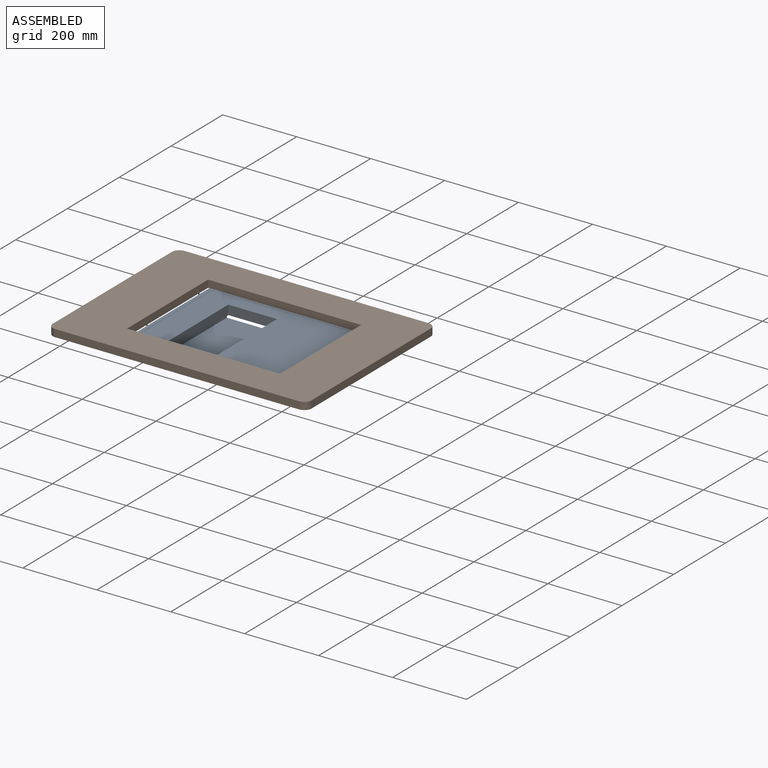
[diagram: assembled view]
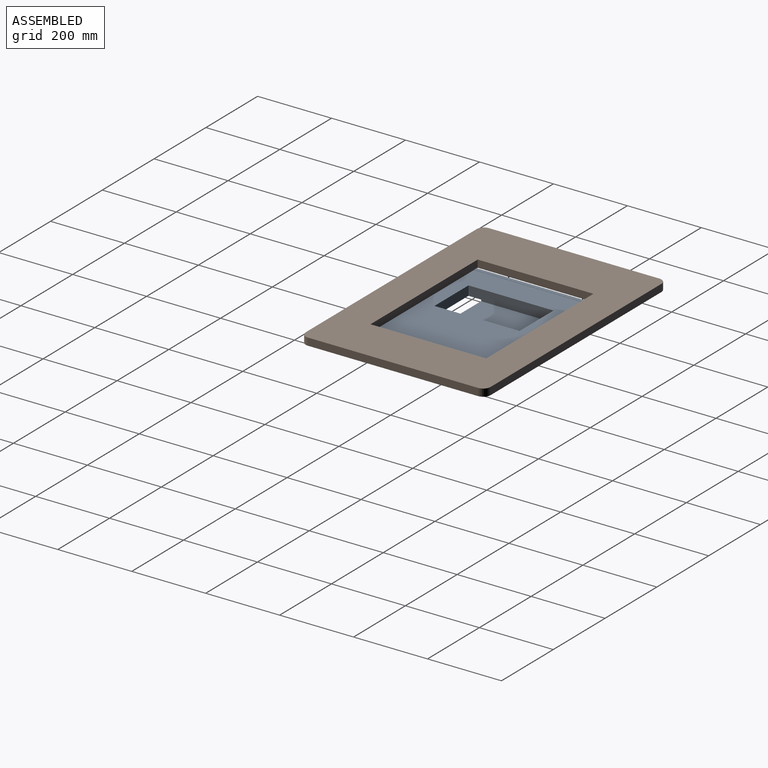
[diagram: assembled view, second angle]
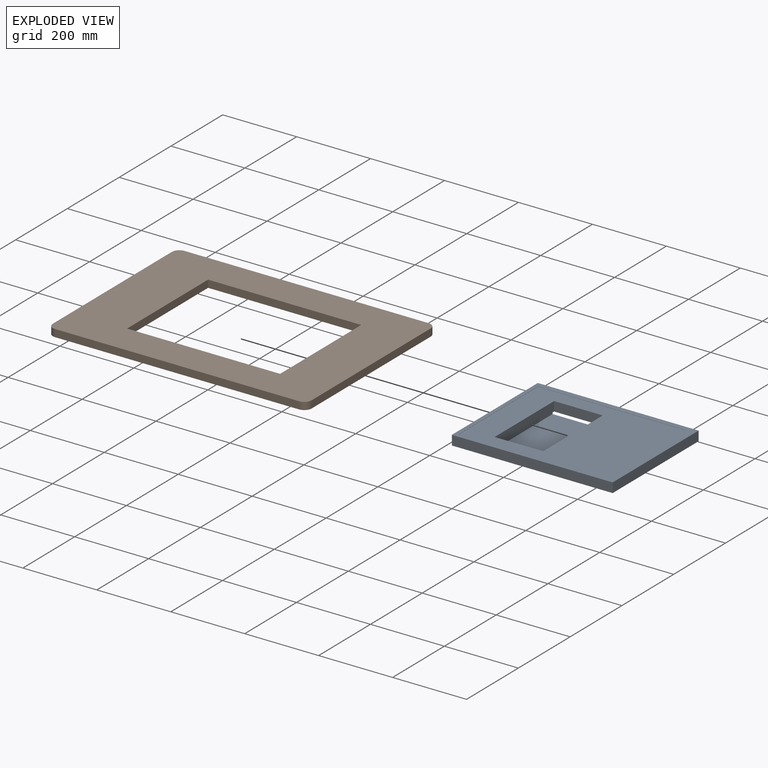
[diagram: exploded view]
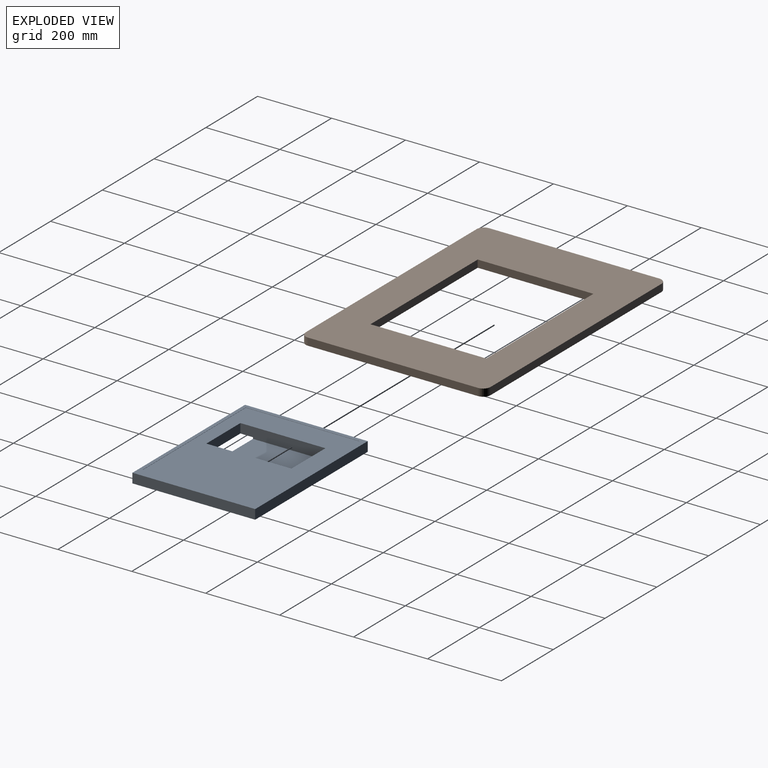
[diagram: exploded view, second angle]
ASSEMBLY  parts=2 mates=3
PART A: 26 faces, bbox 435x332x58 mm
  f0: plane 435x332mm, normal (0,0,-1), area 84052.2mm2, adj f1,f2,f3,f4,f11,f12,f13,f14
  f1: plane 435x26mm, normal (0,1,0), area 11310mm2, adj f0,f2,f4,f5
  f2: plane 332x26mm, normal (-1,0,0), area 8632mm2, adj f0,f1,f3,f5
  f3: plane 435x26mm, normal (0,-1,0), area 11310mm2, adj f0,f2,f4,f5
  f4: plane 332x26mm, normal (1,0,0), area 8632mm2, adj f0,f1,f3,f5
  f5: plane 435x332mm, normal (0,0,1), area 21604.5mm2, adj f1,f2,f3,f4,f6,f7,f8,f9
  f6: plane 307.5x0.5mm, normal (1,0,0), area 153.8mm2, adj f5,f7,f9,f10
  f7: plane 399.4x0.5mm, normal (0,1,0), area 199.7mm2, adj f5,f6,f8,f10
  f8: plane 307.5x0.5mm, normal (-1,0,0), area 153.8mm2, adj f5,f7,f9,f10
  f9: plane 399.4x0.5mm, normal (0,-1,0), area 199.7mm2, adj f5,f6,f8,f10
  f10: plane 399.4x307.5mm, normal (0,0,1), area 92573.9mm2, adj f6,f7,f8,f9,f21,f22,f23,f24
  f11: plane 290x32mm, normal (0,-1,0), area 8754.2mm2, adj f0,f12,f14,f15,f23,f24,f25
  f12: plane 190x32mm, normal (1,0,0), area 6080mm2, adj f0,f11,f13,f15
  f13: plane 290x32mm, normal (0,1,0), area 8257.4mm2, adj f0,f12,f14,f15,f16,f17,f18,f19
  f14: plane 190x32mm, normal (-1,0,0), area 6080mm2, adj f0,f11,f13,f15
  f15: plane 290x190mm, normal (0,0,-1), area 55100mm2, adj f11,f12,f13,f14
  f16: plane 10.88x5mm, normal (1,0,0), area 54.4mm2, adj f13,f17,f19,f20
  f17: plane 45.66x5mm, normal (0,0,-1), area 228.3mm2, adj f13,f16,f18,f20
  f18: plane 10.88x5mm, normal (-1,0,0), area 54.4mm2, adj f13,f17,f19,f20
  f19: plane 45.66x5mm, normal (0,0,1), area 228.3mm2, adj f13,f16,f18,f20
  f20: plane 45.66x10.88mm, normal (0,1,0), area 496.8mm2, adj f16,f17,f18,f19
  f21: plane 131.44x25.5mm, normal (0,1,0), area 3351.8mm2, adj f0,f10,f23,f24
  f22: plane 131.44x25.5mm, normal (0,-1,0), area 3351.8mm2, adj f0,f10,f23,f24
  f23: plane 230.08x29.5mm, normal (1,0,0), area 6627mm2, adj f0,f10,f11,f13,f21,f22,f25
  f24: plane 230.08x29.5mm, normal (-1,0,0), area 6627mm2, adj f0,f10,f11,f13,f21,f22,f25
  f25: plane 190x131.44mm, normal (0,0,1), area 24973.8mm2, adj f11,f13,f23,f24
PART B: 14 faces, bbox 700x500x20 mm
  f0: plane 660x20mm, normal (0,1,0), area 13200mm2, adj f4,f5,f10,f13
  f1: plane 460x20mm, normal (-1,0,0), area 9200mm2, adj f4,f5,f10,f11
  f2: plane 660x20mm, normal (0,-1,0), area 13200mm2, adj f4,f5,f11,f12
  f3: plane 460x20mm, normal (1,0,0), area 9200mm2, adj f4,f5,f12,f13
  f4: plane 700x500mm, normal (0,0,1), area 220074.6mm2, adj f0,f1,f2,f3,f6,f7,f8,f9
  f5: plane 700x500mm, normal (0,0,-1), area 220074.6mm2, adj f0,f1,f2,f3,f6,f7,f8,f9
  f6: plane 313x20mm, normal (1,0,0), area 6260mm2, adj f4,f5,f7,f9
  f7: plane 414x20mm, normal (0,1,0), area 8280mm2, adj f4,f5,f6,f8
  f8: plane 313x20mm, normal (-1,0,0), area 6260mm2, adj f4,f5,f7,f9
  f9: plane 414x20mm, normal (0,-1,0), area 8280mm2, adj f4,f5,f6,f8
  f10: cylinder r=20mm len=20mm, axis (0,0,-1), area 628.3mm2, adj f0,f1,f4,f5
  f11: cylinder r=20mm len=20mm, axis (0,0,1), area 628.3mm2, adj f1,f2,f4,f5
  f12: cylinder r=20mm len=20mm, axis (0,0,-1), area 628.3mm2, adj f2,f3,f4,f5
  f13: cylinder r=20mm len=20mm, axis (0,0,1), area 628.3mm2, adj f0,f3,f4,f5
PLACE A t=(1.94,158.2,41.66)mm fixed
PLACE B t=(-18.85,158.2,67.16)mm
MATE planar B.f8 <-> A.f8  axis (-1,0,0) through (194.44,158.2,77.16)mm
MATE planar A.f7 <-> B.f7  axis (0,1,0) through (-5.26,1.7,67.41)mm
MATE planar A.f10 <-> B.f5  axis (0,0,1) through (14.7,156.22,67.16)mm
